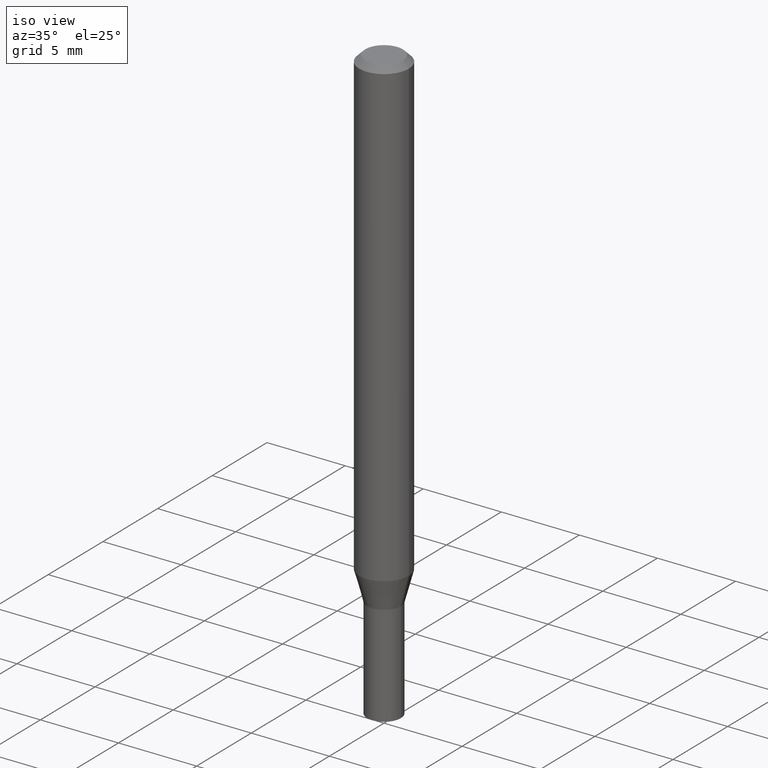
[diagram: clean part render]
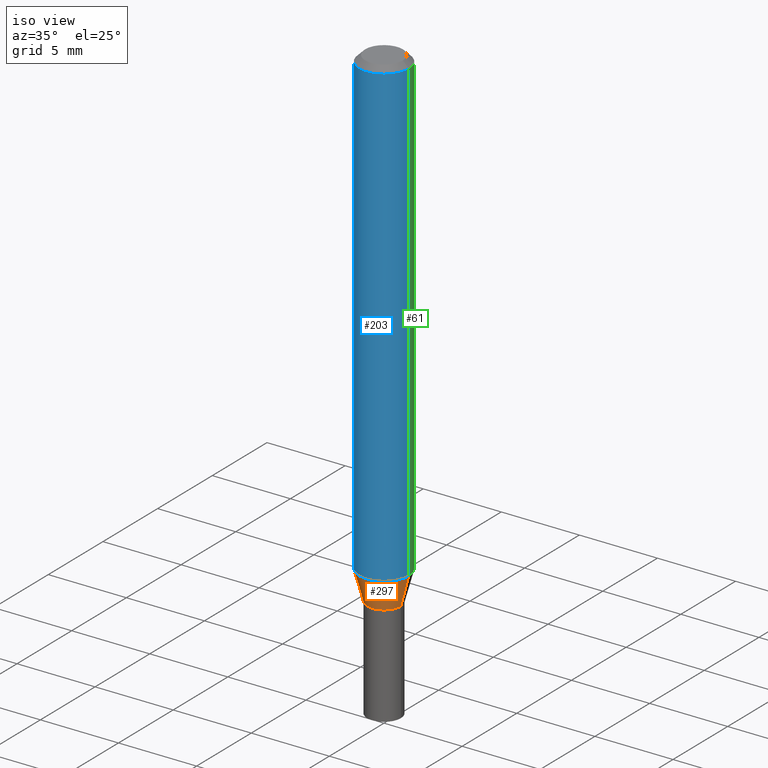
[diagram: same view with three faces highlighted in distinct colors, each labeled with its STEP entity id]
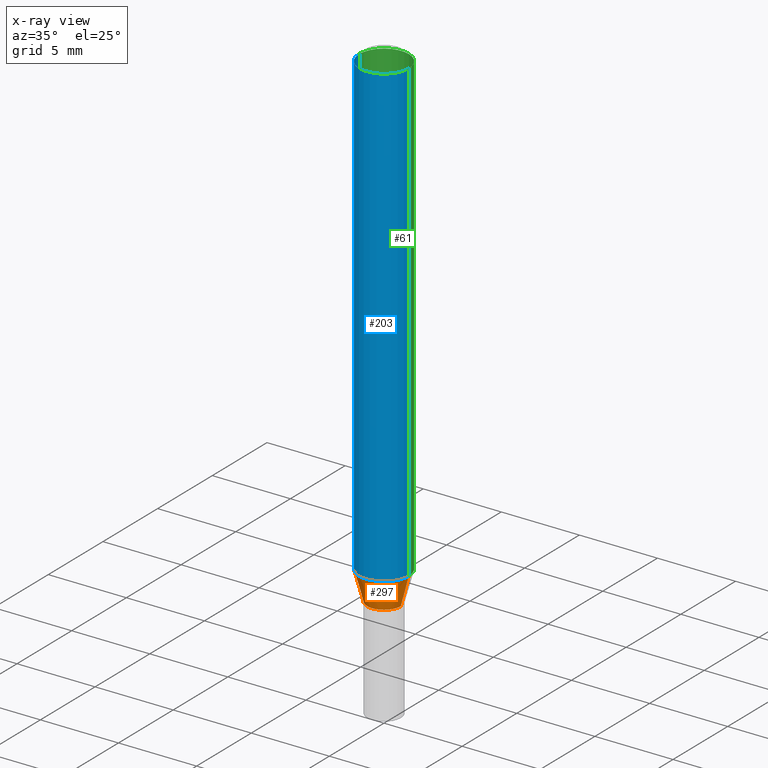
[diagram: x-ray of the same camera — body ghosted, the three highlighted faces saturated]
A machine part, iso view with three faces highlighted in distinct colors.
The next image is the same camera in x-ray (body ghosted, the three faces saturated) — at least one of them is partly hidden behind the body in this view.
Their STEP definitions:

[orange] entity #297 — the highlighted conical surface has half-angle 15 deg.
#28 = DIRECTION ( 'NONE',  ( -0.2588190451025216832, 5.211531920934551831E-15, 0.9659258262890679791 ) ) ;
#40 = CARTESIAN_POINT ( 'NONE',  ( 0.06250000000000000000, -4.522721719210286280E-15, -1.170358983848623469 ) ) ;
#45 = CARTESIAN_POINT ( 'NONE',  ( 0.04250000000000019734, -4.643670180661383298E-15, -1.244999999999999885 ) ) ;
#52 = DIRECTION ( 'NONE',  ( -2.445468806185136597E-29, 3.491481338843145583E-15, 1.000000000000000000 ) ) ;
#59 = DIRECTION ( 'NONE',  ( 1.000000000000000000, -6.982962677686254089E-15, 0.000000000000000000 ) ) ;
#72 = VERTEX_POINT ( 'NONE', #384 ) ;
#75 = AXIS2_PLACEMENT_3D ( 'NONE', #258, #52, #444 ) ;
#89 = EDGE_CURVE ( 'NONE', #72, #189, #265, .T. ) ;
#92 = EDGE_CURVE ( 'NONE', #72, #397, #464, .T. ) ;
#132 = LINE ( 'NONE', #196, #438 ) ;
#154 = FACE_OUTER_BOUND ( 'NONE', #321, .T. ) ;
#189 = VERTEX_POINT ( 'NONE', #409 ) ;
#196 = CARTESIAN_POINT ( 'NONE',  ( 0.04250000000000019734, -4.643670180661383298E-15, -1.244999999999999885 ) ) ;
#230 = DIRECTION ( 'NONE',  ( 1.000000000000000000, -6.982962677686254089E-15, 0.000000000000000000 ) ) ;
#231 = CIRCLE ( 'NONE', #75, 0.06250000000000000000 ) ;
#234 = CARTESIAN_POINT ( 'NONE',  ( 3.044608663700494973E-29, -4.346894266859715858E-15, -1.244999999999999885 ) ) ;
#250 = AXIS2_PLACEMENT_3D ( 'NONE', #234, #377, #59 ) ;
#258 = CARTESIAN_POINT ( 'NONE',  ( 2.862076387040342886E-29, -4.086286551854895399E-15, -1.170358983848623469 ) ) ;
#265 = LINE ( 'NONE', #345, #275 ) ;
#272 = DIRECTION ( 'NONE',  ( -2.445468806185136597E-29, 3.491481338843145583E-15, 1.000000000000000000 ) ) ;
#275 = VECTOR ( 'NONE', #28, 39.37007874015748143 ) ;
#284 = ORIENTED_EDGE ( 'NONE', *, *, #92, .T. ) ;
#297 = ADVANCED_FACE ( 'NONE', ( #154 ), #301, .T. ) ;
#301 = CONICAL_SURFACE ( 'NONE', #315, 0.04250000000000019734, 0.2617993877991502960 ) ;
#315 = AXIS2_PLACEMENT_3D ( 'NONE', #366, #272, #230 ) ;
#321 = EDGE_LOOP ( 'NONE', ( #354, #284, #389, #395 ) ) ;
#345 = CARTESIAN_POINT ( 'NONE',  ( -0.04250000000000019734, -4.044913604161671827E-15, -1.244999999999999885 ) ) ;
#354 = ORIENTED_EDGE ( 'NONE', *, *, #89, .F. ) ;
#366 = CARTESIAN_POINT ( 'NONE',  ( 3.044608663700494973E-29, -4.346894266859715858E-15, -1.244999999999999885 ) ) ;
#377 = DIRECTION ( 'NONE',  ( -2.445468806185136597E-29, 3.491481338843145583E-15, 1.000000000000000000 ) ) ;
#384 = CARTESIAN_POINT ( 'NONE',  ( -0.04250000000000019734, -3.843555473083252305E-15, -1.244999999999999885 ) ) ;
#389 = ORIENTED_EDGE ( 'NONE', *, *, #401, .T. ) ;
#394 = VERTEX_POINT ( 'NONE', #40 ) ;
#395 = ORIENTED_EDGE ( 'NONE', *, *, #405, .F. ) ;
#397 = VERTEX_POINT ( 'NONE', #45 ) ;
#401 = EDGE_CURVE ( 'NONE', #397, #394, #132, .T. ) ;
#405 = EDGE_CURVE ( 'NONE', #189, #394, #231, .T. ) ;
#409 = CARTESIAN_POINT ( 'NONE',  ( -0.06250000000000000000, -3.642197342004831994E-15, -1.170358983848623469 ) ) ;
#438 = VECTOR ( 'NONE', #440, 39.37007874015748143 ) ;
#440 = DIRECTION ( 'NONE',  ( 0.2588190451025216832, 1.565188264969619798E-15, 0.9659258262890679791 ) ) ;
#444 = DIRECTION ( 'NONE',  ( 1.000000000000000000, -6.982962677686262766E-15, 0.000000000000000000 ) ) ;
#464 = CIRCLE ( 'NONE', #250, 0.04250000000000019734 ) ;

[blue] entity #203 — the highlighted cylindrical surface (edge-blend (fillet) strip) has radius 1.5875 mm, axis along (-0, 0, 1).
#4 = ORIENTED_EDGE ( 'NONE', *, *, #405, .T. ) ;
#11 = CARTESIAN_POINT ( 'NONE',  ( -0.06250000000000000000, 4.440892098500626162E-16, -3.074334431409316114E-30 ) ) ;
#14 = LINE ( 'NONE', #11, #110 ) ;
#36 = ORIENTED_EDGE ( 'NONE', *, *, #192, .F. ) ;
#40 = CARTESIAN_POINT ( 'NONE',  ( 0.06250000000000000000, -4.522721719210286280E-15, -1.170358983848623469 ) ) ;
#47 = VECTOR ( 'NONE', #130, 39.37007874015748143 ) ;
#52 = DIRECTION ( 'NONE',  ( -2.445468806185136597E-29, 3.491481338843145583E-15, 1.000000000000000000 ) ) ;
#55 = CIRCLE ( 'NONE', #138, 0.06250000000000000000 ) ;
#75 = AXIS2_PLACEMENT_3D ( 'NONE', #258, #52, #444 ) ;
#82 = VERTEX_POINT ( 'NONE', #339 ) ;
#110 = VECTOR ( 'NONE', #287, 39.37007874015748143 ) ;
#123 = VERTEX_POINT ( 'NONE', #159 ) ;
#130 = DIRECTION ( 'NONE',  ( -2.445468806185136877E-29, 3.491481338843145188E-15, 1.000000000000000000 ) ) ;
#133 = DIRECTION ( 'NONE',  ( 1.000000000000000000, -6.982962677686266711E-15, 0.000000000000000000 ) ) ;
#136 = EDGE_LOOP ( 'NONE', ( #36, #4, #217, #305 ) ) ;
#138 = AXIS2_PLACEMENT_3D ( 'NONE', #370, #455, #133 ) ;
#159 = CARTESIAN_POINT ( 'NONE',  ( -0.06250000000000000000, -1.625240176118708426E-15, -0.01499999999999999944 ) ) ;
#161 = FACE_OUTER_BOUND ( 'NONE', #136, .T. ) ;
#165 = CYLINDRICAL_SURFACE ( 'NONE', #349, 0.06250000000000000000 ) ;
#189 = VERTEX_POINT ( 'NONE', #409 ) ;
#192 = EDGE_CURVE ( 'NONE', #189, #123, #14, .T. ) ;
#203 = ADVANCED_FACE ( 'NONE', ( #161 ), #165, .T. ) ;
#217 = ORIENTED_EDGE ( 'NONE', *, *, #254, .T. ) ;
#229 = DIRECTION ( 'NONE',  ( -2.445468806185136597E-29, 3.491481338843145583E-15, 1.000000000000000000 ) ) ;
#231 = CIRCLE ( 'NONE', #75, 0.06250000000000000000 ) ;
#254 = EDGE_CURVE ( 'NONE', #394, #82, #325, .T. ) ;
#258 = CARTESIAN_POINT ( 'NONE',  ( 2.862076387040342886E-29, -4.086286551854895399E-15, -1.170358983848623469 ) ) ;
#287 = DIRECTION ( 'NONE',  ( -2.445468806185136877E-29, 3.491481338843145188E-15, 1.000000000000000000 ) ) ;
#290 = CARTESIAN_POINT ( 'NONE',  ( 0.06250000000000000000, -4.364351673553916694E-16, 3.047610484872459871E-30 ) ) ;
#305 = ORIENTED_EDGE ( 'NONE', *, *, #313, .F. ) ;
#313 = EDGE_CURVE ( 'NONE', #123, #82, #55, .T. ) ;
#325 = LINE ( 'NONE', #290, #47 ) ;
#339 = CARTESIAN_POINT ( 'NONE',  ( 0.06250000000000000000, -4.888073874380388472E-16, -0.01499999999999999944 ) ) ;
#349 = AXIS2_PLACEMENT_3D ( 'NONE', #441, #229, #371 ) ;
#370 = CARTESIAN_POINT ( 'NONE',  ( 3.668203209277705088E-31, -5.237222008264718399E-17, -0.01499999999999999944 ) ) ;
#371 = DIRECTION ( 'NONE',  ( 1.000000000000000000, -6.982962677686266711E-15, 4.876176775795935793E-29 ) ) ;
#394 = VERTEX_POINT ( 'NONE', #40 ) ;
#405 = EDGE_CURVE ( 'NONE', #189, #394, #231, .T. ) ;
#409 = CARTESIAN_POINT ( 'NONE',  ( -0.06250000000000000000, -3.642197342004831994E-15, -1.170358983848623469 ) ) ;
#441 = CARTESIAN_POINT ( 'NONE',  ( 0.000000000000000000, 0.000000000000000000, 0.000000000000000000 ) ) ;
#444 = DIRECTION ( 'NONE',  ( 1.000000000000000000, -6.982962677686262766E-15, 0.000000000000000000 ) ) ;
#455 = DIRECTION ( 'NONE',  ( -2.445468806185136597E-29, 3.491481338843145583E-15, 1.000000000000000000 ) ) ;

[green] entity #61 — the highlighted cylindrical surface (edge-blend (fillet) strip) has radius 1.5875 mm, axis along (-0, 0, 1).
#11 = CARTESIAN_POINT ( 'NONE',  ( -0.06250000000000000000, 4.440892098500626162E-16, -3.074334431409316114E-30 ) ) ;
#14 = LINE ( 'NONE', #11, #110 ) ;
#17 = FACE_OUTER_BOUND ( 'NONE', #233, .T. ) ;
#40 = CARTESIAN_POINT ( 'NONE',  ( 0.06250000000000000000, -4.522721719210286280E-15, -1.170358983848623469 ) ) ;
#47 = VECTOR ( 'NONE', #130, 39.37007874015748143 ) ;
#54 = AXIS2_PLACEMENT_3D ( 'NONE', #111, #243, #101 ) ;
#61 = ADVANCED_FACE ( 'NONE', ( #17 ), #414, .T. ) ;
#82 = VERTEX_POINT ( 'NONE', #339 ) ;
#85 = ORIENTED_EDGE ( 'NONE', *, *, #333, .T. ) ;
#88 = CARTESIAN_POINT ( 'NONE',  ( 3.668203209277705088E-31, -5.237222008264718399E-17, -0.01499999999999999944 ) ) ;
#101 = DIRECTION ( 'NONE',  ( 1.000000000000000000, -6.982962677686266711E-15, 4.876176775795935793E-29 ) ) ;
#110 = VECTOR ( 'NONE', #287, 39.37007874015748143 ) ;
#111 = CARTESIAN_POINT ( 'NONE',  ( 0.000000000000000000, 0.000000000000000000, 0.000000000000000000 ) ) ;
#123 = VERTEX_POINT ( 'NONE', #159 ) ;
#129 = DIRECTION ( 'NONE',  ( 1.000000000000000000, -6.982962677686262766E-15, 0.000000000000000000 ) ) ;
#130 = DIRECTION ( 'NONE',  ( -2.445468806185136877E-29, 3.491481338843145188E-15, 1.000000000000000000 ) ) ;
#159 = CARTESIAN_POINT ( 'NONE',  ( -0.06250000000000000000, -1.625240176118708426E-15, -0.01499999999999999944 ) ) ;
#168 = DIRECTION ( 'NONE',  ( 1.000000000000000000, -6.982962677686266711E-15, 0.000000000000000000 ) ) ;
#189 = VERTEX_POINT ( 'NONE', #409 ) ;
#192 = EDGE_CURVE ( 'NONE', #189, #123, #14, .T. ) ;
#215 = ORIENTED_EDGE ( 'NONE', *, *, #192, .T. ) ;
#221 = EDGE_CURVE ( 'NONE', #82, #123, #399, .T. ) ;
#233 = EDGE_LOOP ( 'NONE', ( #85, #215, #278, #466 ) ) ;
#243 = DIRECTION ( 'NONE',  ( -2.445468806185136597E-29, 3.491481338843145583E-15, 1.000000000000000000 ) ) ;
#254 = EDGE_CURVE ( 'NONE', #394, #82, #325, .T. ) ;
#267 = CIRCLE ( 'NONE', #431, 0.06250000000000000000 ) ;
#278 = ORIENTED_EDGE ( 'NONE', *, *, #221, .F. ) ;
#287 = DIRECTION ( 'NONE',  ( -2.445468806185136877E-29, 3.491481338843145188E-15, 1.000000000000000000 ) ) ;
#290 = CARTESIAN_POINT ( 'NONE',  ( 0.06250000000000000000, -4.364351673553916694E-16, 3.047610484872459871E-30 ) ) ;
#325 = LINE ( 'NONE', #290, #47 ) ;
#328 = AXIS2_PLACEMENT_3D ( 'NONE', #88, #367, #168 ) ;
#333 = EDGE_CURVE ( 'NONE', #394, #189, #267, .T. ) ;
#339 = CARTESIAN_POINT ( 'NONE',  ( 0.06250000000000000000, -4.888073874380388472E-16, -0.01499999999999999944 ) ) ;
#367 = DIRECTION ( 'NONE',  ( -2.445468806185136597E-29, 3.491481338843145583E-15, 1.000000000000000000 ) ) ;
#394 = VERTEX_POINT ( 'NONE', #40 ) ;
#398 = DIRECTION ( 'NONE',  ( -2.445468806185136597E-29, 3.491481338843145583E-15, 1.000000000000000000 ) ) ;
#399 = CIRCLE ( 'NONE', #328, 0.06250000000000000000 ) ;
#409 = CARTESIAN_POINT ( 'NONE',  ( -0.06250000000000000000, -3.642197342004831994E-15, -1.170358983848623469 ) ) ;
#414 = CYLINDRICAL_SURFACE ( 'NONE', #54, 0.06250000000000000000 ) ;
#431 = AXIS2_PLACEMENT_3D ( 'NONE', #436, #398, #129 ) ;
#436 = CARTESIAN_POINT ( 'NONE',  ( 2.862076387040342886E-29, -4.086286551854895399E-15, -1.170358983848623469 ) ) ;
#466 = ORIENTED_EDGE ( 'NONE', *, *, #254, .F. ) ;